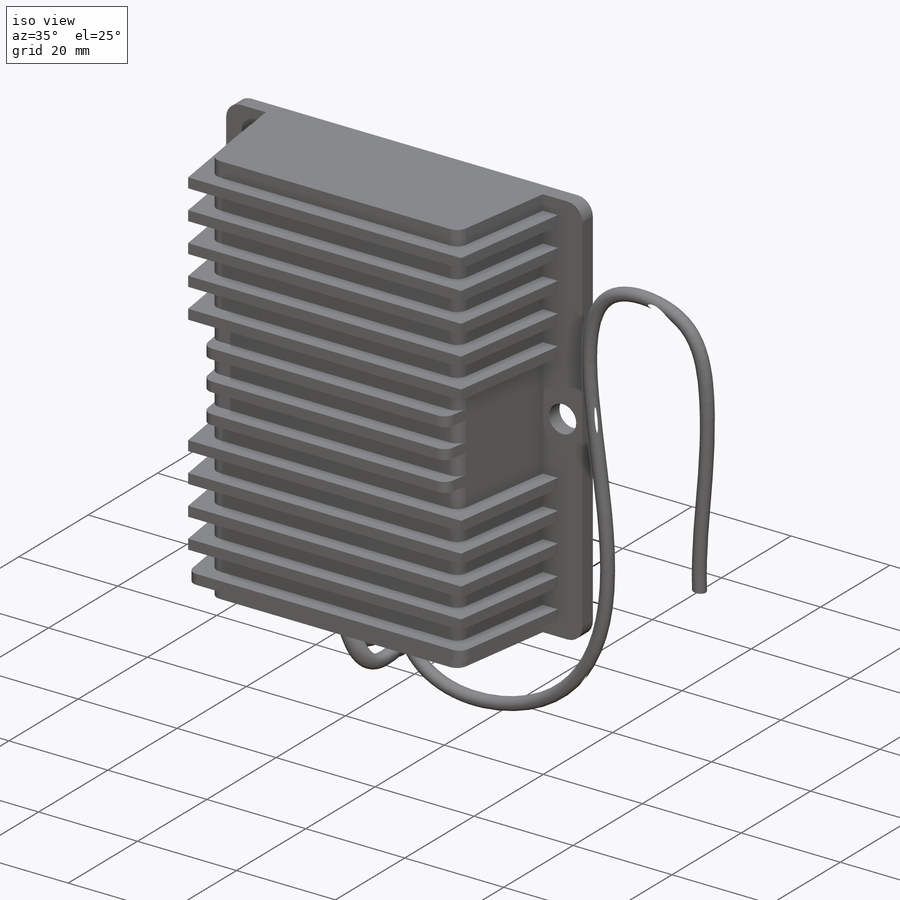
[diagram: iso view]
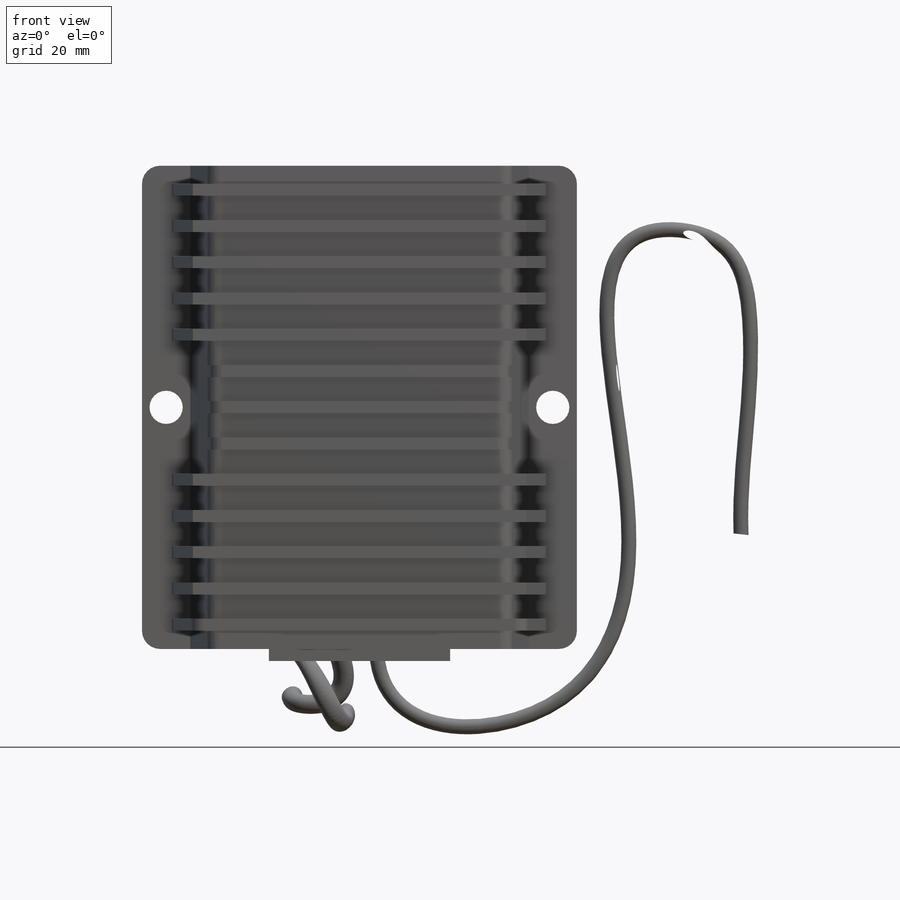
[diagram: front view]
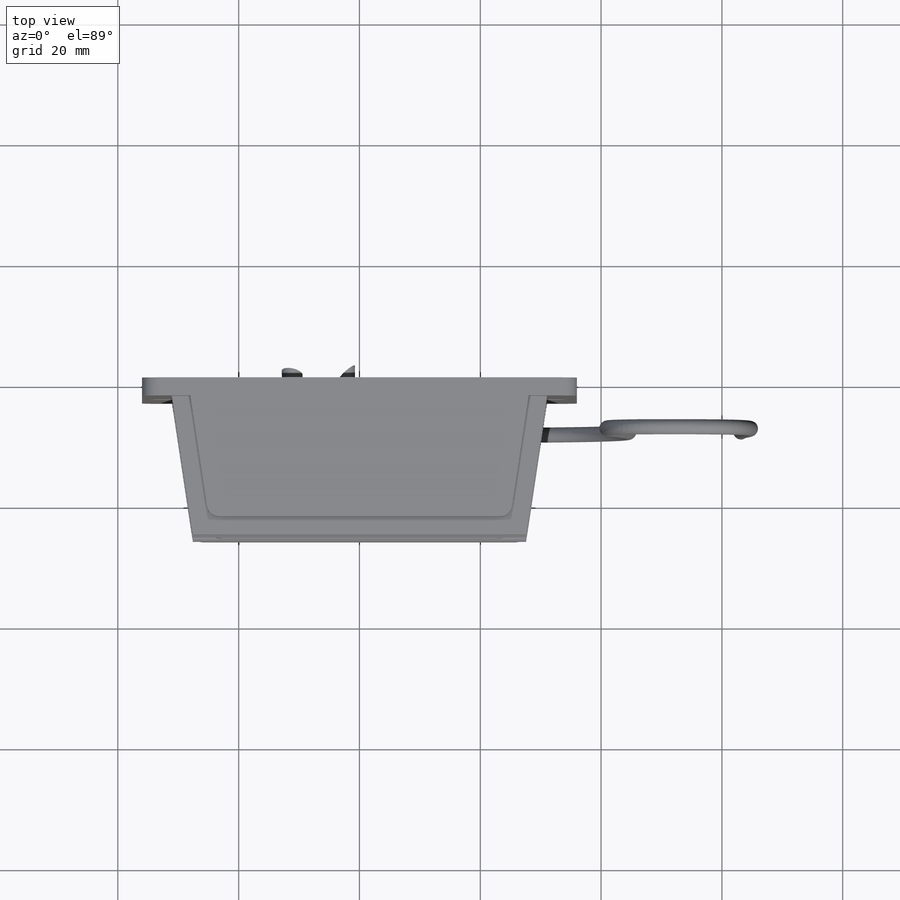
[diagram: top view]
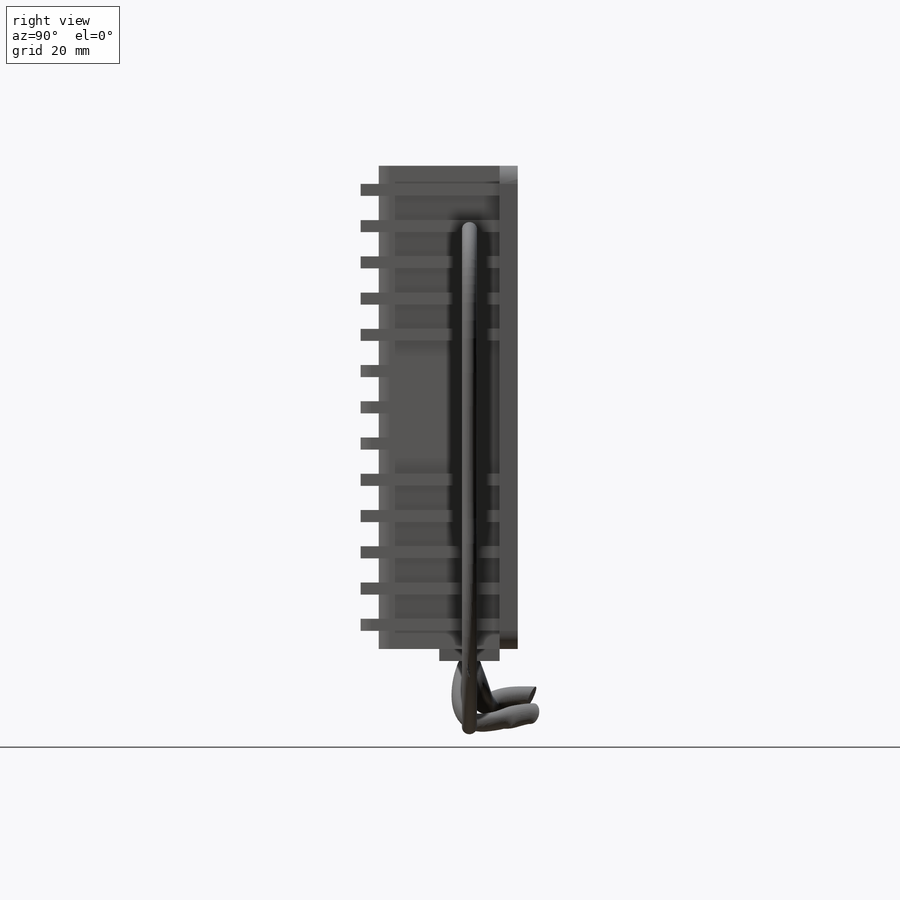
[diagram: right view]
SOLIDWORKS PART (.sldprt)
format: sldprt  version: not decoded by parser v0  size: 998,400 bytes
history: native  units: mm
features: sketch x14, extrude x4, sweep x4, fillet x3, cut_extrude x2, material x1, plane x1, pattern_linear x1 (+16 scaffold rows collapsed)
feature tree (46):
  scaffold x16  (default folders/planes/origin — collapsed)
  material  "Material <not specified>"
  sketch  "Sketch1"  dims[D1=72.0mm D2=80.0mm]
  extrude  "Boss-Extrude1"  Depth=3mm
  sketch  "Sketch3"  dims[D1=5.5mm D2=66.0mm]
  cut_extrude  "Cut-Extrude1"  [1 undecoded]
  sketch  "Sketch5"  dims[D1=56.0mm D2=20.0mm D3=50.0mm]
  extrude  "Boss-Extrude3"  [1 undecoded]
  fillet  "Fillet3"  Radius=2mm
  plane  "Plane1"  Offset=3mm
  sketch  "Sketch7"  dims[D1=3.0mm D2=3.0mm]
  extrude  "Boss-Extrude4"  Depth=2mm
  fillet  "Fillet2"  Radius=2mm
  pattern_linear  "LPattern1"  Count1=13 Count2=1 Spacing1=6mm Spacing2=10mm
  fillet  "Fillet1"  Radius=3mm
  sketch  "Sketch8"  dims[D1=0.0mm]
  cut_extrude  "Cut-Extrude4"  Depth=16mm
  sketch  "Sketch9"  dims[D1=10.0mm D2=30.0mm]
  extrude  "Boss-Extrude6"  Depth=2mm
  sketch  "Sketch10"  dims[D1=3.5mm D2=6.0mm]
  sketch  "3DSketch1"
  sketch  "Sketch11"
  sweep  "Sweep1"
  sketch  "3DSketch3"
  sweep  "Sweep2"
  sketch  "Sketch12"  dims[D1=2.0mm D2=2.5mm]
  sketch  "3DSketch4"
  sweep  "Sweep3"
  sketch  "Sketch13"  dims[D1=2.5mm]
  sketch  "3DSketch5"
  sweep  "Sweep7"
decode coverage: 17 of 28 modeling features carry decoded parameters
note: 2 parameter values undecoded
summary: profile_refs inferred from adjacent sketches, not decoded
note: suppression state not decoded; provenance and decode notes live in map.json
